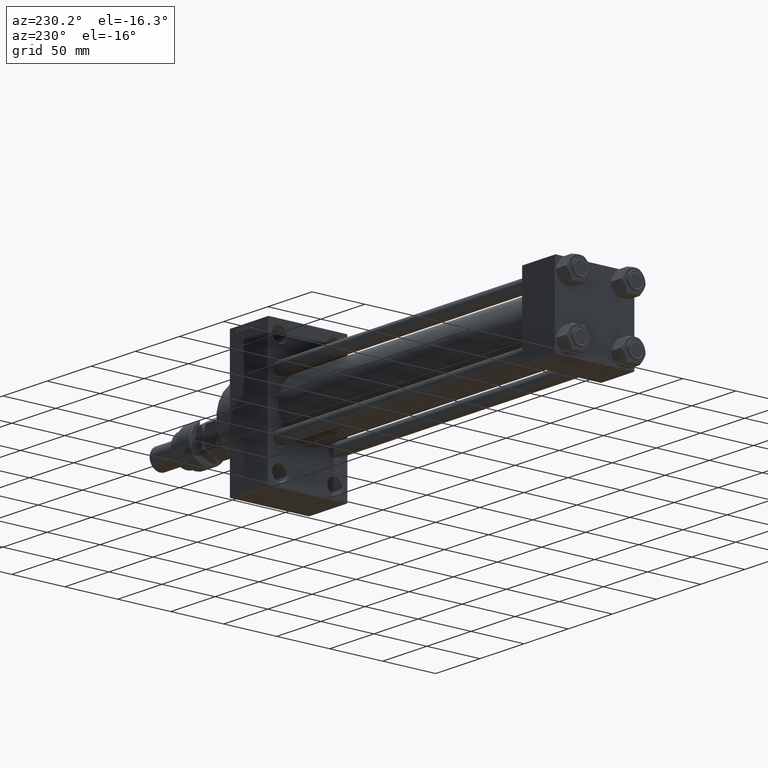
[diagram: clean part render]
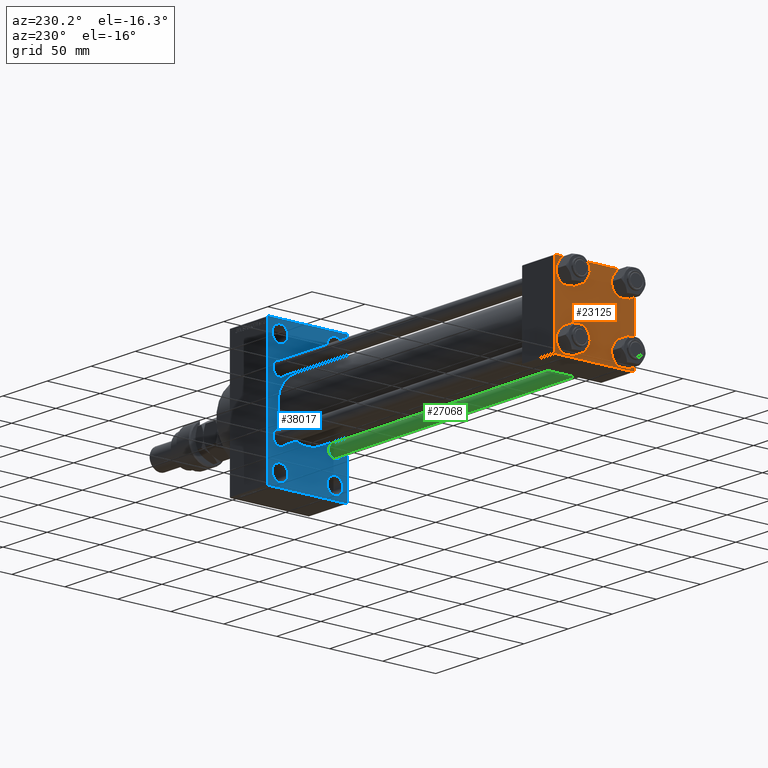
[diagram: same view with three faces highlighted in distinct colors, each labeled with its STEP entity id]
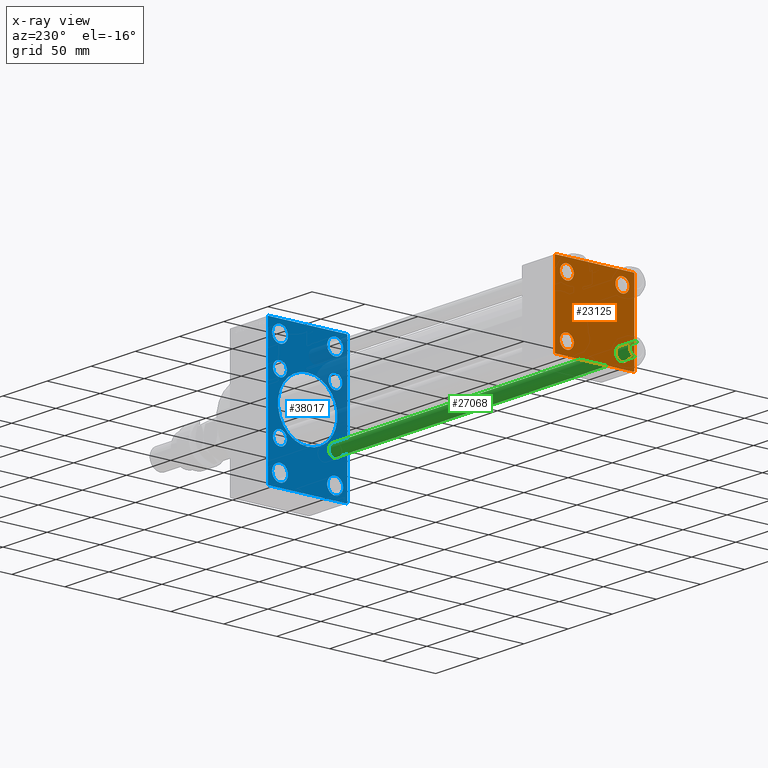
[diagram: x-ray of the same camera — body ghosted, the three highlighted faces saturated]
A machine part, auxiliary view with three faces highlighted in distinct colors.
The next image is the same camera in x-ray (body ghosted, the three faces saturated) — at least one of them is partly hidden behind the body in this view.
Their STEP definitions:

[orange] entity #23125 — the highlighted planar face has unit normal (-1, 0, 0).
#491 = ORIENTED_EDGE ( 'NONE', *, *, #43007, .T. ) ;
#774 = ORIENTED_EDGE ( 'NONE', *, *, #31074, .T. ) ;
#1131 = EDGE_LOOP ( 'NONE', ( #774, #491 ) ) ;
#1439 = CARTESIAN_POINT ( 'NONE',  ( 0.000000000000000000, -37.00000000000002132, -37.50000000000000711 ) ) ;
#1771 = CARTESIAN_POINT ( 'NONE',  ( 0.000000000000000000, 37.49999999999999289, 37.00000000000000000 ) ) ;
#1823 = DIRECTION ( 'NONE',  ( 0.000000000000000000, 0.000000000000000000, 1.000000000000000000 ) ) ;
#2017 = EDGE_CURVE ( 'NONE', #16453, #8182, #15017, .T. ) ;
#2538 = ORIENTED_EDGE ( 'NONE', *, *, #30746, .T. ) ;
#2564 = ORIENTED_EDGE ( 'NONE', *, *, #26328, .F. ) ;
#3113 = VERTEX_POINT ( 'NONE', #45481 ) ;
#3364 = CIRCLE ( 'NONE', #48608, 6.500000000000015987 ) ;
#4168 = VECTOR ( 'NONE', #6081, 1000.000000000000114 ) ;
#4410 = CARTESIAN_POINT ( 'NONE',  ( 0.000000000000000000, -37.24999999999975842, -37.25000000000027001 ) ) ;
#4815 = DIRECTION ( 'NONE',  ( 0.000000000000000000, 0.000000000000000000, 1.000000000000000000 ) ) ;
#4841 = EDGE_LOOP ( 'NONE', ( #31552, #46095, #11657, #36432, #2564, #31416, #23328, #17465 ) ) ;
#5378 = CARTESIAN_POINT ( 'NONE',  ( 0.000000000000000000, -37.00000000000000711, 37.49999999999999289 ) ) ;
#5585 = ORIENTED_EDGE ( 'NONE', *, *, #12288, .T. ) ;
#5615 = CARTESIAN_POINT ( 'NONE',  ( 0.000000000000000000, 36.99999999999999289, 37.50000000000000000 ) ) ;
#5675 = DIRECTION ( 'NONE',  ( -0.000000000000000000, -0.7071067811865474617, -0.7071067811865474617 ) ) ;
#6081 = DIRECTION ( 'NONE',  ( -0.000000000000000000, 0.7071067811865474617, 0.7071067811865474617 ) ) ;
#6692 = LINE ( 'NONE', #37057, #43044 ) ;
#6701 = CARTESIAN_POINT ( 'NONE',  ( 0.000000000000000000, 26.14999999999999858, 26.15000000000000213 ) ) ;
#6837 = LINE ( 'NONE', #41240, #4168 ) ;
#7637 = AXIS2_PLACEMENT_3D ( 'NONE', #23829, #19540, #4815 ) ;
#7995 = FACE_OUTER_BOUND ( 'NONE', #4841, .T. ) ;
#8008 = CARTESIAN_POINT ( 'NONE',  ( 0.000000000000000000, -26.14999999999999147, -32.65000000000002700 ) ) ;
#8182 = VERTEX_POINT ( 'NONE', #19647 ) ;
#8379 = CIRCLE ( 'NONE', #23747, 6.500000000000015987 ) ;
#8413 = DIRECTION ( 'NONE',  ( 1.000000000000000000, -0.000000000000000000, 0.000000000000000000 ) ) ;
#9046 = EDGE_CURVE ( 'NONE', #3113, #12116, #24678, .T. ) ;
#10012 = LINE ( 'NONE', #25458, #27886 ) ;
#10101 = VERTEX_POINT ( 'NONE', #17948 ) ;
#11657 = ORIENTED_EDGE ( 'NONE', *, *, #9046, .T. ) ;
#12116 = VERTEX_POINT ( 'NONE', #1439 ) ;
#12288 = EDGE_CURVE ( 'NONE', #24018, #10101, #8379, .T. ) ;
#12386 = CIRCLE ( 'NONE', #30198, 6.500000000000023093 ) ;
#14422 = EDGE_CURVE ( 'NONE', #8182, #16453, #39139, .T. ) ;
#15017 = CIRCLE ( 'NONE', #45709, 6.500000000000023093 ) ;
#15305 = EDGE_CURVE ( 'NONE', #41282, #27900, #10012, .T. ) ;
#15340 = DIRECTION ( 'NONE',  ( 1.000000000000000000, -0.000000000000000000, 0.000000000000000000 ) ) ;
#15388 = VERTEX_POINT ( 'NONE', #45673 ) ;
#15630 = CARTESIAN_POINT ( 'NONE',  ( 0.000000000000000000, 37.49999999999999289, -36.99999999999998579 ) ) ;
#16223 = DIRECTION ( 'NONE',  ( 1.000000000000000000, -0.000000000000000000, 0.000000000000000000 ) ) ;
#16453 = VERTEX_POINT ( 'NONE', #21236 ) ;
#16851 = ORIENTED_EDGE ( 'NONE', *, *, #2017, .T. ) ;
#17071 = DIRECTION ( 'NONE',  ( 0.000000000000000000, -1.000000000000000000, -9.251858538542972814E-17 ) ) ;
#17465 = ORIENTED_EDGE ( 'NONE', *, *, #15305, .T. ) ;
#17601 = DIRECTION ( 'NONE',  ( 0.000000000000000000, 0.7071067811865474617, -0.7071067811865474617 ) ) ;
#17948 = CARTESIAN_POINT ( 'NONE',  ( 0.000000000000000000, 26.14999999999999858, -19.64999999999998792 ) ) ;
#18627 = CARTESIAN_POINT ( 'NONE',  ( 0.000000000000000000, -26.14999999999999147, -19.64999999999999503 ) ) ;
#18726 = DIRECTION ( 'NONE',  ( 0.000000000000000000, 0.000000000000000000, 1.000000000000000000 ) ) ;
#18994 = VERTEX_POINT ( 'NONE', #31601 ) ;
#19338 = AXIS2_PLACEMENT_3D ( 'NONE', #23672, #15340, #23444 ) ;
#19346 = EDGE_LOOP ( 'NONE', ( #42785, #5585 ) ) ;
#19443 = CIRCLE ( 'NONE', #33146, 6.500000000000015987 ) ;
#19540 = DIRECTION ( 'NONE',  ( 1.000000000000000000, -0.000000000000000000, 0.000000000000000000 ) ) ;
#19625 = DIRECTION ( 'NONE',  ( 0.000000000000000000, -0.7071067811865524577, 0.7071067811865426878 ) ) ;
#19647 = CARTESIAN_POINT ( 'NONE',  ( 0.000000000000000000, -26.14999999999999147, 19.64999999999999147 ) ) ;
#20828 = DIRECTION ( 'NONE',  ( 1.000000000000000000, -0.000000000000000000, 0.000000000000000000 ) ) ;
#21236 = CARTESIAN_POINT ( 'NONE',  ( 0.000000000000000000, -26.14999999999999147, 32.65000000000003411 ) ) ;
#21291 = CARTESIAN_POINT ( 'NONE',  ( 0.000000000000000000, 26.14999999999999858, 32.65000000000002700 ) ) ;
#21870 = AXIS2_PLACEMENT_3D ( 'NONE', #46099, #16223, #31659 ) ;
#22938 = PLANE ( 'NONE',  #42725 ) ;
#23125 = ADVANCED_FACE ( 'NONE', ( #42388, #46437, #49724, #27241, #7995 ), #22938, .T. ) ;
#23328 = ORIENTED_EDGE ( 'NONE', *, *, #37629, .F. ) ;
#23440 = DIRECTION ( 'NONE',  ( -0.000000000000000000, 0.000000000000000000, 1.000000000000000000 ) ) ;
#23444 = DIRECTION ( 'NONE',  ( 0.000000000000000000, 0.000000000000000000, 1.000000000000000000 ) ) ;
#23672 = CARTESIAN_POINT ( 'NONE',  ( 0.000000000000000000, -26.14999999999999147, -26.15000000000000924 ) ) ;
#23747 = AXIS2_PLACEMENT_3D ( 'NONE', #42903, #47183, #43883 ) ;
#23829 = CARTESIAN_POINT ( 'NONE',  ( 0.000000000000000000, -26.14999999999999147, 26.15000000000000924 ) ) ;
#24018 = VERTEX_POINT ( 'NONE', #49992 ) ;
#24678 = LINE ( 'NONE', #44392, #28878 ) ;
#24992 = EDGE_CURVE ( 'NONE', #45800, #38895, #37085, .T. ) ;
#25458 = CARTESIAN_POINT ( 'NONE',  ( 0.000000000000000000, 37.24999999999999289, 37.24999999999999289 ) ) ;
#26328 = EDGE_CURVE ( 'NONE', #44862, #15388, #46390, .T. ) ;
#26697 = CARTESIAN_POINT ( 'NONE',  ( 0.000000000000000000, -37.50000000000000711, 37.49999999999999289 ) ) ;
#27241 = FACE_BOUND ( 'NONE', #1131, .T. ) ;
#27273 = LINE ( 'NONE', #42172, #48615 ) ;
#27886 = VECTOR ( 'NONE', #17601, 1000.000000000000114 ) ;
#27900 = VERTEX_POINT ( 'NONE', #1771 ) ;
#28878 = VECTOR ( 'NONE', #17071, 1000.000000000000000 ) ;
#29160 = ORIENTED_EDGE ( 'NONE', *, *, #24992, .T. ) ;
#29350 = EDGE_CURVE ( 'NONE', #27900, #35406, #37839, .T. ) ;
#30198 = AXIS2_PLACEMENT_3D ( 'NONE', #6701, #48174, #37305 ) ;
#30746 = EDGE_CURVE ( 'NONE', #38895, #45800, #19443, .T. ) ;
#30776 = DIRECTION ( 'NONE',  ( 0.000000000000000000, 0.000000000000000000, -1.000000000000000000 ) ) ;
#30815 = DIRECTION ( 'NONE',  ( 0.000000000000000000, -1.000000000000000000, -9.251858538542971581E-17 ) ) ;
#31074 = EDGE_CURVE ( 'NONE', #32949, #18994, #31528, .T. ) ;
#31416 = ORIENTED_EDGE ( 'NONE', *, *, #34014, .T. ) ;
#31528 = CIRCLE ( 'NONE', #21870, 6.500000000000023093 ) ;
#31552 = ORIENTED_EDGE ( 'NONE', *, *, #29350, .T. ) ;
#31601 = CARTESIAN_POINT ( 'NONE',  ( 0.000000000000000000, 26.14999999999999858, 19.64999999999998437 ) ) ;
#31659 = DIRECTION ( 'NONE',  ( 0.000000000000000000, 0.000000000000000000, 1.000000000000000000 ) ) ;
#32543 = EDGE_LOOP ( 'NONE', ( #2538, #29160 ) ) ;
#32949 = VERTEX_POINT ( 'NONE', #21291 ) ;
#33146 = AXIS2_PLACEMENT_3D ( 'NONE', #46884, #20828, #1823 ) ;
#34014 = EDGE_CURVE ( 'NONE', #44862, #37978, #6837, .T. ) ;
#34565 = CARTESIAN_POINT ( 'NONE',  ( 0.000000000000000000, 37.49999999999999289, 37.50000000000000000 ) ) ;
#35406 = VERTEX_POINT ( 'NONE', #15630 ) ;
#35722 = CARTESIAN_POINT ( 'NONE',  ( 0.000000000000000000, 26.14999999999999858, -26.15000000000000213 ) ) ;
#36432 = ORIENTED_EDGE ( 'NONE', *, *, #47589, .T. ) ;
#37057 = CARTESIAN_POINT ( 'NONE',  ( 0.000000000000000000, 37.24999999999998579, -37.24999999999998579 ) ) ;
#37085 = CIRCLE ( 'NONE', #19338, 6.500000000000015987 ) ;
#37305 = DIRECTION ( 'NONE',  ( 0.000000000000000000, 0.000000000000000000, 1.000000000000000000 ) ) ;
#37629 = EDGE_CURVE ( 'NONE', #41282, #37978, #27273, .T. ) ;
#37839 = LINE ( 'NONE', #34565, #42788 ) ;
#37978 = VERTEX_POINT ( 'NONE', #5378 ) ;
#38093 = CARTESIAN_POINT ( 'NONE',  ( 0.000000000000000000, 0.000000000000000000, 0.000000000000000000 ) ) ;
#38895 = VERTEX_POINT ( 'NONE', #18627 ) ;
#39139 = CIRCLE ( 'NONE', #7637, 6.500000000000023093 ) ;
#40328 = EDGE_CURVE ( 'NONE', #10101, #24018, #3364, .T. ) ;
#40656 = VECTOR ( 'NONE', #19625, 1000.000000000000000 ) ;
#41240 = CARTESIAN_POINT ( 'NONE',  ( -0.000000000000000000, -37.25000000000000000, 37.25000000000000000 ) ) ;
#41282 = VERTEX_POINT ( 'NONE', #5615 ) ;
#41384 = EDGE_LOOP ( 'NONE', ( #16851, #47026 ) ) ;
#41484 = DIRECTION ( 'NONE',  ( 1.000000000000000000, -0.000000000000000000, 0.000000000000000000 ) ) ;
#42138 = LINE ( 'NONE', #4410, #40656 ) ;
#42172 = CARTESIAN_POINT ( 'NONE',  ( 0.000000000000000000, 37.49999999999999289, 37.50000000000000000 ) ) ;
#42345 = DIRECTION ( 'NONE',  ( 0.000000000000000000, 9.251858538542971581E-17, -1.000000000000000000 ) ) ;
#42388 = FACE_BOUND ( 'NONE', #41384, .T. ) ;
#42725 = AXIS2_PLACEMENT_3D ( 'NONE', #38093, #49982, #23440 ) ;
#42785 = ORIENTED_EDGE ( 'NONE', *, *, #40328, .T. ) ;
#42788 = VECTOR ( 'NONE', #30776, 1000.000000000000000 ) ;
#42903 = CARTESIAN_POINT ( 'NONE',  ( 0.000000000000000000, 26.14999999999999858, -26.15000000000000213 ) ) ;
#43007 = EDGE_CURVE ( 'NONE', #18994, #32949, #12386, .T. ) ;
#43044 = VECTOR ( 'NONE', #5675, 1000.000000000000114 ) ;
#43883 = DIRECTION ( 'NONE',  ( 0.000000000000000000, 0.000000000000000000, 1.000000000000000000 ) ) ;
#44392 = CARTESIAN_POINT ( 'NONE',  ( 0.000000000000000000, 37.49999999999999289, -37.50000000000000000 ) ) ;
#44862 = VERTEX_POINT ( 'NONE', #45696 ) ;
#45106 = VECTOR ( 'NONE', #42345, 1000.000000000000000 ) ;
#45481 = CARTESIAN_POINT ( 'NONE',  ( 0.000000000000000000, 36.99999999999997868, -37.50000000000000000 ) ) ;
#45673 = CARTESIAN_POINT ( 'NONE',  ( 0.000000000000000000, -37.50000000000000000, -37.00000000000003553 ) ) ;
#45696 = CARTESIAN_POINT ( 'NONE',  ( 0.000000000000000000, -37.50000000000000711, 36.99999999999999289 ) ) ;
#45709 = AXIS2_PLACEMENT_3D ( 'NONE', #50073, #41484, #18726 ) ;
#45800 = VERTEX_POINT ( 'NONE', #8008 ) ;
#46005 = EDGE_CURVE ( 'NONE', #35406, #3113, #6692, .T. ) ;
#46095 = ORIENTED_EDGE ( 'NONE', *, *, #46005, .T. ) ;
#46099 = CARTESIAN_POINT ( 'NONE',  ( 0.000000000000000000, 26.14999999999999858, 26.15000000000000213 ) ) ;
#46390 = LINE ( 'NONE', #26697, #45106 ) ;
#46437 = FACE_BOUND ( 'NONE', #32543, .T. ) ;
#46884 = CARTESIAN_POINT ( 'NONE',  ( 0.000000000000000000, -26.14999999999999147, -26.15000000000000924 ) ) ;
#47026 = ORIENTED_EDGE ( 'NONE', *, *, #14422, .T. ) ;
#47099 = DIRECTION ( 'NONE',  ( 0.000000000000000000, 0.000000000000000000, 1.000000000000000000 ) ) ;
#47183 = DIRECTION ( 'NONE',  ( 1.000000000000000000, -0.000000000000000000, 0.000000000000000000 ) ) ;
#47589 = EDGE_CURVE ( 'NONE', #12116, #15388, #42138, .T. ) ;
#48174 = DIRECTION ( 'NONE',  ( 1.000000000000000000, -0.000000000000000000, 0.000000000000000000 ) ) ;
#48608 = AXIS2_PLACEMENT_3D ( 'NONE', #35722, #8413, #47099 ) ;
#48615 = VECTOR ( 'NONE', #30815, 1000.000000000000000 ) ;
#49724 = FACE_BOUND ( 'NONE', #19346, .T. ) ;
#49982 = DIRECTION ( 'NONE',  ( -1.000000000000000000, 0.000000000000000000, -0.000000000000000000 ) ) ;
#49992 = CARTESIAN_POINT ( 'NONE',  ( 0.000000000000000000, 26.14999999999999858, -32.65000000000001990 ) ) ;
#50073 = CARTESIAN_POINT ( 'NONE',  ( 0.000000000000000000, -26.14999999999999147, 26.15000000000000924 ) ) ;

[blue] entity #38017 — the highlighted planar face has unit normal (-1, 0, 0).
#178 = VERTEX_POINT ( 'NONE', #41008 ) ;
#255 = AXIS2_PLACEMENT_3D ( 'NONE', #23883, #28175, #4624 ) ;
#422 = EDGE_CURVE ( 'NONE', #38787, #47277, #36744, .T. ) ;
#1002 = DIRECTION ( 'NONE',  ( 0.000000000000000000, -0.7071067811865965336, 0.7071067811864985009 ) ) ;
#1061 = FACE_BOUND ( 'NONE', #3178, .T. ) ;
#1338 = EDGE_LOOP ( 'NONE', ( #14252, #7712 ) ) ;
#1345 = DIRECTION ( 'NONE',  ( 1.000000000000000000, -0.000000000000000000, 0.000000000000000000 ) ) ;
#1399 = CARTESIAN_POINT ( 'NONE',  ( 324.9999999999999432, -2.602085213965210642E-15, 0.000000000000000000 ) ) ;
#1573 = PLANE ( 'NONE',  #255 ) ;
#1847 = CARTESIAN_POINT ( 'NONE',  ( 324.9999999999999432, 26.14999999999999858, 26.15000000000000213 ) ) ;
#2112 = AXIS2_PLACEMENT_3D ( 'NONE', #9128, #20269, #35693 ) ;
#2136 = CARTESIAN_POINT ( 'NONE',  ( 324.9999999999999432, -26.14999999999999147, 19.65000000000000213 ) ) ;
#2381 = EDGE_CURVE ( 'NONE', #4992, #9051, #13363, .T. ) ;
#2704 = DIRECTION ( 'NONE',  ( 0.000000000000000000, 0.000000000000000000, 1.000000000000000000 ) ) ;
#3114 = LINE ( 'NONE', #7179, #13010 ) ;
#3143 = CARTESIAN_POINT ( 'NONE',  ( 324.9999999999999432, -26.14999999999999147, -26.15000000000000924 ) ) ;
#3178 = EDGE_LOOP ( 'NONE', ( #7174, #4167 ) ) ;
#3280 = VERTEX_POINT ( 'NONE', #9521 ) ;
#3330 = VECTOR ( 'NONE', #36031, 1000.000000000000000 ) ;
#3481 = ORIENTED_EDGE ( 'NONE', *, *, #43152, .T. ) ;
#3499 = CARTESIAN_POINT ( 'NONE',  ( 324.9999999999999432, 26.00000000000000000, 60.00000000000010658 ) ) ;
#3887 = DIRECTION ( 'NONE',  ( 1.000000000000000000, -0.000000000000000000, 0.000000000000000000 ) ) ;
#4167 = ORIENTED_EDGE ( 'NONE', *, *, #11757, .T. ) ;
#4382 = EDGE_LOOP ( 'NONE', ( #9327, #40598 ) ) ;
#4422 = EDGE_LOOP ( 'NONE', ( #28946, #23139 ) ) ;
#4451 = EDGE_CURVE ( 'NONE', #17009, #6601, #20595, .T. ) ;
#4562 = CARTESIAN_POINT ( 'NONE',  ( 324.9999999999999432, -2.602085213965210642E-15, 0.000000000000000000 ) ) ;
#4624 = DIRECTION ( 'NONE',  ( -0.000000000000000000, 0.000000000000000000, 1.000000000000000000 ) ) ;
#4717 = VERTEX_POINT ( 'NONE', #14639 ) ;
#4992 = VERTEX_POINT ( 'NONE', #48461 ) ;
#5002 = ORIENTED_EDGE ( 'NONE', *, *, #18771, .T. ) ;
#5123 = DIRECTION ( 'NONE',  ( 1.000000000000000000, -0.000000000000000000, 0.000000000000000000 ) ) ;
#5178 = DIRECTION ( 'NONE',  ( 0.000000000000000000, 0.000000000000000000, 1.000000000000000000 ) ) ;
#5454 = CARTESIAN_POINT ( 'NONE',  ( 324.9999999999999432, -2.602085213965210642E-15, 28.00000000000000000 ) ) ;
#5513 = AXIS2_PLACEMENT_3D ( 'NONE', #15971, #31413, #26640 ) ;
#5707 = DIRECTION ( 'NONE',  ( 1.000000000000000000, 0.000000000000000000, 0.000000000000000000 ) ) ;
#5984 = DIRECTION ( 'NONE',  ( 1.000000000000000000, -0.000000000000000000, 0.000000000000000000 ) ) ;
#6425 = EDGE_CURVE ( 'NONE', #30758, #3280, #7010, .T. ) ;
#6449 = CARTESIAN_POINT ( 'NONE',  ( 324.9999999999999432, -36.99999999999992895, 63.99999999999997158 ) ) ;
#6516 = DIRECTION ( 'NONE',  ( 1.000000000000000000, -0.000000000000000000, 0.000000000000000000 ) ) ;
#6546 = ORIENTED_EDGE ( 'NONE', *, *, #20259, .T. ) ;
#6601 = VERTEX_POINT ( 'NONE', #17315 ) ;
#7010 = LINE ( 'NONE', #41152, #23152 ) ;
#7055 = VERTEX_POINT ( 'NONE', #19150 ) ;
#7058 = CIRCLE ( 'NONE', #47431, 6.500000000000008882 ) ;
#7174 = ORIENTED_EDGE ( 'NONE', *, *, #38416, .T. ) ;
#7179 = CARTESIAN_POINT ( 'NONE',  ( 324.9999999999999432, 50.49999999999739941, -50.50000000000441247 ) ) ;
#7311 = CARTESIAN_POINT ( 'NONE',  ( 324.9999999999999432, 26.14999999999999858, -26.15000000000000213 ) ) ;
#7483 = DIRECTION ( 'NONE',  ( 0.000000000000000000, -5.421010862427522170E-17, -1.000000000000000000 ) ) ;
#7712 = ORIENTED_EDGE ( 'NONE', *, *, #26455, .T. ) ;
#8143 = CARTESIAN_POINT ( 'NONE',  ( 324.9999999999999432, -50.49999999999740652, -50.50000000000441958 ) ) ;
#8189 = ORIENTED_EDGE ( 'NONE', *, *, #422, .T. ) ;
#8298 = CARTESIAN_POINT ( 'NONE',  ( 324.9999999999999432, 8.269258236473784371E-16, -28.00000000000000000 ) ) ;
#8435 = FACE_BOUND ( 'NONE', #26160, .T. ) ;
#8641 = EDGE_CURVE ( 'NONE', #4717, #178, #19345, .T. ) ;
#8969 = EDGE_CURVE ( 'NONE', #7055, #40799, #14356, .T. ) ;
#9051 = VERTEX_POINT ( 'NONE', #2136 ) ;
#9128 = CARTESIAN_POINT ( 'NONE',  ( 324.9999999999999432, -26.14999999999999147, -26.15000000000000924 ) ) ;
#9172 = DIRECTION ( 'NONE',  ( 1.000000000000000000, -0.000000000000000000, 0.000000000000000000 ) ) ;
#9219 = EDGE_CURVE ( 'NONE', #40799, #7055, #15156, .T. ) ;
#9327 = ORIENTED_EDGE ( 'NONE', *, *, #27680, .T. ) ;
#9521 = CARTESIAN_POINT ( 'NONE',  ( 324.9999999999999432, 37.50000000000000000, 63.49999999999998579 ) ) ;
#9846 = VERTEX_POINT ( 'NONE', #26624 ) ;
#10283 = LINE ( 'NONE', #22685, #36349 ) ;
#11252 = CIRCLE ( 'NONE', #36242, 6.500000000000008882 ) ;
#11338 = CARTESIAN_POINT ( 'NONE',  ( 324.9999999999999432, -37.49999999999999289, 63.49999999999991473 ) ) ;
#11757 = EDGE_CURVE ( 'NONE', #15295, #46197, #27375, .T. ) ;
#12096 = DIRECTION ( 'NONE',  ( 0.000000000000000000, 0.000000000000000000, 1.000000000000000000 ) ) ;
#12168 = DIRECTION ( 'NONE',  ( 0.000000000000000000, 0.000000000000000000, -1.000000000000000000 ) ) ;
#12172 = EDGE_CURVE ( 'NONE', #40950, #42176, #31125, .T. ) ;
#12183 = AXIS2_PLACEMENT_3D ( 'NONE', #16464, #47317, #12671 ) ;
#12224 = DIRECTION ( 'NONE',  ( 0.000000000000000000, 0.000000000000000000, 1.000000000000000000 ) ) ;
#12477 = CARTESIAN_POINT ( 'NONE',  ( 324.9999999999999432, -26.14999999999999147, 26.15000000000000924 ) ) ;
#12486 = VERTEX_POINT ( 'NONE', #48177 ) ;
#12613 = CARTESIAN_POINT ( 'NONE',  ( 324.9999999999999432, -50.49999999999969447, 50.50000000000039080 ) ) ;
#12671 = DIRECTION ( 'NONE',  ( 0.000000000000000000, 0.000000000000000000, 1.000000000000000000 ) ) ;
#12815 = EDGE_LOOP ( 'NONE', ( #35242, #20408 ) ) ;
#13010 = VECTOR ( 'NONE', #22627, 1000.000000000000114 ) ;
#13363 = CIRCLE ( 'NONE', #41658, 6.500000000000008882 ) ;
#13468 = VECTOR ( 'NONE', #15532, 1000.000000000000000 ) ;
#13595 = DIRECTION ( 'NONE',  ( 0.000000000000000000, -1.000000000000000000, -1.850371707708594563E-16 ) ) ;
#13813 = ORIENTED_EDGE ( 'NONE', *, *, #43581, .F. ) ;
#13851 = VERTEX_POINT ( 'NONE', #31121 ) ;
#14101 = LINE ( 'NONE', #33594, #32587 ) ;
#14252 = ORIENTED_EDGE ( 'NONE', *, *, #12172, .T. ) ;
#14356 = CIRCLE ( 'NONE', #24824, 7.500000000000117240 ) ;
#14574 = CARTESIAN_POINT ( 'NONE',  ( 324.9999999999999432, -25.99999999999999645, 44.99999999999987921 ) ) ;
#14639 = CARTESIAN_POINT ( 'NONE',  ( 324.9999999999999432, 36.99999999999993605, -64.00000000000000000 ) ) ;
#14805 = ORIENTED_EDGE ( 'NONE', *, *, #45733, .T. ) ;
#14896 = VERTEX_POINT ( 'NONE', #17921 ) ;
#15156 = CIRCLE ( 'NONE', #45844, 7.500000000000117240 ) ;
#15295 = VERTEX_POINT ( 'NONE', #29767 ) ;
#15532 = DIRECTION ( 'NONE',  ( 0.000000000000000000, -1.000000000000000000, -1.850371707708594563E-16 ) ) ;
#15971 = CARTESIAN_POINT ( 'NONE',  ( 324.9999999999999432, -25.99999999999999645, -52.49999999999999289 ) ) ;
#16464 = CARTESIAN_POINT ( 'NONE',  ( 324.9999999999999432, -25.99999999999999645, -52.49999999999999289 ) ) ;
#16515 = DIRECTION ( 'NONE',  ( 1.000000000000000000, -0.000000000000000000, 0.000000000000000000 ) ) ;
#16605 = ORIENTED_EDGE ( 'NONE', *, *, #29405, .T. ) ;
#16754 = EDGE_CURVE ( 'NONE', #31614, #22548, #38432, .T. ) ;
#16807 = LINE ( 'NONE', #39327, #3330 ) ;
#17009 = VERTEX_POINT ( 'NONE', #47658 ) ;
#17259 = AXIS2_PLACEMENT_3D ( 'NONE', #40652, #6516, #2704 ) ;
#17284 = CARTESIAN_POINT ( 'NONE',  ( 324.9999999999999432, 26.14999999999999858, 26.15000000000000213 ) ) ;
#17315 = CARTESIAN_POINT ( 'NONE',  ( 324.9999999999999432, 26.14999999999999858, 19.64999999999999147 ) ) ;
#17554 = CIRCLE ( 'NONE', #49037, 28.00000000000000000 ) ;
#17876 = ORIENTED_EDGE ( 'NONE', *, *, #47306, .T. ) ;
#17921 = CARTESIAN_POINT ( 'NONE',  ( 324.9999999999999432, -37.49999999999999289, -63.50000000000002842 ) ) ;
#17999 = VERTEX_POINT ( 'NONE', #6449 ) ;
#18771 = EDGE_CURVE ( 'NONE', #12486, #9846, #32834, .T. ) ;
#19150 = CARTESIAN_POINT ( 'NONE',  ( 324.9999999999999432, 26.00000000000000000, -60.00000000000010658 ) ) ;
#19336 = EDGE_LOOP ( 'NONE', ( #28448, #45152, #24961, #36623, #13813, #22959, #16605, #20410 ) ) ;
#19345 = LINE ( 'NONE', #34767, #13468 ) ;
#19837 = AXIS2_PLACEMENT_3D ( 'NONE', #7311, #30851, #12096 ) ;
#20139 = CARTESIAN_POINT ( 'NONE',  ( 324.9999999999999432, 26.00000000000000000, -52.49999999999999289 ) ) ;
#20230 = CARTESIAN_POINT ( 'NONE',  ( 324.9999999999999432, 26.14999999999999858, -19.64999999999999503 ) ) ;
#20259 = EDGE_CURVE ( 'NONE', #35518, #23653, #17554, .T. ) ;
#20269 = DIRECTION ( 'NONE',  ( 1.000000000000000000, -0.000000000000000000, 0.000000000000000000 ) ) ;
#20272 = DIRECTION ( 'NONE',  ( 0.000000000000000000, 0.000000000000000000, 1.000000000000000000 ) ) ;
#20408 = ORIENTED_EDGE ( 'NONE', *, *, #21102, .T. ) ;
#20410 = ORIENTED_EDGE ( 'NONE', *, *, #32694, .T. ) ;
#20579 = DIRECTION ( 'NONE',  ( 0.000000000000000000, 0.000000000000000000, 1.000000000000000000 ) ) ;
#20595 = CIRCLE ( 'NONE', #40815, 6.500000000000008882 ) ;
#21102 = EDGE_CURVE ( 'NONE', #9051, #4992, #7058, .T. ) ;
#22548 = VERTEX_POINT ( 'NONE', #20230 ) ;
#22627 = DIRECTION ( 'NONE',  ( -0.000000000000000000, -0.7071067811865965336, -0.7071067811864985009 ) ) ;
#22648 = EDGE_LOOP ( 'NONE', ( #14805, #8189 ) ) ;
#22685 = CARTESIAN_POINT ( 'NONE',  ( 324.9999999999999432, 37.50000000000000000, 63.99999999999998579 ) ) ;
#22900 = DIRECTION ( 'NONE',  ( 0.000000000000000000, 0.000000000000000000, 1.000000000000000000 ) ) ;
#22959 = ORIENTED_EDGE ( 'NONE', *, *, #6425, .T. ) ;
#23139 = ORIENTED_EDGE ( 'NONE', *, *, #8969, .T. ) ;
#23152 = VECTOR ( 'NONE', #49235, 1000.000000000000000 ) ;
#23319 = CIRCLE ( 'NONE', #41892, 7.500000000000117240 ) ;
#23524 = AXIS2_PLACEMENT_3D ( 'NONE', #17284, #36510, #40048 ) ;
#23653 = VERTEX_POINT ( 'NONE', #8298 ) ;
#23883 = CARTESIAN_POINT ( 'NONE',  ( 324.9999999999999432, 0.000000000000000000, 0.000000000000000000 ) ) ;
#24355 = DIRECTION ( 'NONE',  ( 0.000000000000000000, 0.000000000000000000, 1.000000000000000000 ) ) ;
#24495 = AXIS2_PLACEMENT_3D ( 'NONE', #3143, #3887, #22900 ) ;
#24824 = AXIS2_PLACEMENT_3D ( 'NONE', #20139, #27737, #5178 ) ;
#24961 = ORIENTED_EDGE ( 'NONE', *, *, #39882, .F. ) ;
#25106 = CIRCLE ( 'NONE', #23524, 6.500000000000008882 ) ;
#26160 = EDGE_LOOP ( 'NONE', ( #6546, #17876 ) ) ;
#26193 = CIRCLE ( 'NONE', #36661, 28.00000000000000000 ) ;
#26455 = EDGE_CURVE ( 'NONE', #42176, #40950, #23319, .T. ) ;
#26624 = CARTESIAN_POINT ( 'NONE',  ( 324.9999999999999432, -26.14999999999999147, -19.65000000000000213 ) ) ;
#26640 = DIRECTION ( 'NONE',  ( 0.000000000000000000, 0.000000000000000000, 1.000000000000000000 ) ) ;
#27375 = CIRCLE ( 'NONE', #5513, 7.500000000000117240 ) ;
#27634 = CARTESIAN_POINT ( 'NONE',  ( 324.9999999999999432, 26.14999999999999858, -26.15000000000000213 ) ) ;
#27677 = FACE_BOUND ( 'NONE', #40303, .T. ) ;
#27680 = EDGE_CURVE ( 'NONE', #22548, #31614, #11252, .T. ) ;
#27737 = DIRECTION ( 'NONE',  ( 1.000000000000000000, -0.000000000000000000, 0.000000000000000000 ) ) ;
#28008 = DIRECTION ( 'NONE',  ( 0.000000000000000000, 0.000000000000000000, -1.000000000000000000 ) ) ;
#28053 = CARTESIAN_POINT ( 'NONE',  ( 324.9999999999999432, -26.14999999999999147, 26.15000000000000924 ) ) ;
#28079 = EDGE_CURVE ( 'NONE', #34442, #17999, #47508, .T. ) ;
#28175 = DIRECTION ( 'NONE',  ( -1.000000000000000000, 0.000000000000000000, -0.000000000000000000 ) ) ;
#28448 = ORIENTED_EDGE ( 'NONE', *, *, #8641, .T. ) ;
#28946 = ORIENTED_EDGE ( 'NONE', *, *, #9219, .T. ) ;
#29012 = DIRECTION ( 'NONE',  ( 1.000000000000000000, -0.000000000000000000, 0.000000000000000000 ) ) ;
#29405 = EDGE_CURVE ( 'NONE', #3280, #13851, #10283, .T. ) ;
#29767 = CARTESIAN_POINT ( 'NONE',  ( 324.9999999999999432, -25.99999999999999645, -60.00000000000010658 ) ) ;
#30758 = VERTEX_POINT ( 'NONE', #35509 ) ;
#30851 = DIRECTION ( 'NONE',  ( 1.000000000000000000, -0.000000000000000000, 0.000000000000000000 ) ) ;
#31121 = CARTESIAN_POINT ( 'NONE',  ( 324.9999999999999432, 37.49999999999999289, -63.50000000000001421 ) ) ;
#31125 = CIRCLE ( 'NONE', #17259, 7.500000000000117240 ) ;
#31413 = DIRECTION ( 'NONE',  ( 1.000000000000000000, -0.000000000000000000, 0.000000000000000000 ) ) ;
#31419 = DIRECTION ( 'NONE',  ( 1.000000000000000000, 0.000000000000000000, 0.000000000000000000 ) ) ;
#31614 = VERTEX_POINT ( 'NONE', #37078 ) ;
#31843 = EDGE_CURVE ( 'NONE', #6601, #17009, #25106, .T. ) ;
#31966 = FACE_OUTER_BOUND ( 'NONE', #19336, .T. ) ;
#32202 = CARTESIAN_POINT ( 'NONE',  ( 324.9999999999999432, 26.00000000000000000, 52.49999999999999289 ) ) ;
#32544 = AXIS2_PLACEMENT_3D ( 'NONE', #40638, #5984, #32818 ) ;
#32587 = VECTOR ( 'NONE', #13595, 1000.000000000000000 ) ;
#32694 = EDGE_CURVE ( 'NONE', #13851, #4717, #3114, .T. ) ;
#32795 = EDGE_LOOP ( 'NONE', ( #40577, #48491 ) ) ;
#32818 = DIRECTION ( 'NONE',  ( 0.000000000000000000, 0.000000000000000000, 1.000000000000000000 ) ) ;
#32834 = CIRCLE ( 'NONE', #2112, 6.500000000000008882 ) ;
#33594 = CARTESIAN_POINT ( 'NONE',  ( 324.9999999999999432, 37.50000000000000000, 63.99999999999998579 ) ) ;
#34017 = CIRCLE ( 'NONE', #12183, 7.500000000000117240 ) ;
#34442 = VERTEX_POINT ( 'NONE', #11338 ) ;
#34767 = CARTESIAN_POINT ( 'NONE',  ( 324.9999999999999432, 37.49999999999999289, -64.00000000000000000 ) ) ;
#35206 = CARTESIAN_POINT ( 'NONE',  ( 324.9999999999999432, -25.99999999999999645, 60.00000000000011369 ) ) ;
#35242 = ORIENTED_EDGE ( 'NONE', *, *, #2381, .T. ) ;
#35391 = DIRECTION ( 'NONE',  ( 1.000000000000000000, -0.000000000000000000, 0.000000000000000000 ) ) ;
#35509 = CARTESIAN_POINT ( 'NONE',  ( 324.9999999999999432, 36.99999999999994316, 63.99999999999998579 ) ) ;
#35518 = VERTEX_POINT ( 'NONE', #5454 ) ;
#35687 = LINE ( 'NONE', #8143, #38299 ) ;
#35693 = DIRECTION ( 'NONE',  ( 0.000000000000000000, 0.000000000000000000, 1.000000000000000000 ) ) ;
#36031 = DIRECTION ( 'NONE',  ( 0.000000000000000000, 0.000000000000000000, -1.000000000000000000 ) ) ;
#36242 = AXIS2_PLACEMENT_3D ( 'NONE', #27634, #46605, #20272 ) ;
#36349 = VECTOR ( 'NONE', #7483, 1000.000000000000000 ) ;
#36510 = DIRECTION ( 'NONE',  ( 1.000000000000000000, -0.000000000000000000, 0.000000000000000000 ) ) ;
#36623 = ORIENTED_EDGE ( 'NONE', *, *, #28079, .T. ) ;
#36661 = AXIS2_PLACEMENT_3D ( 'NONE', #4562, #31419, #12168 ) ;
#36744 = CIRCLE ( 'NONE', #43196, 7.500000000000117240 ) ;
#37078 = CARTESIAN_POINT ( 'NONE',  ( 324.9999999999999432, 26.14999999999999858, -32.65000000000001279 ) ) ;
#37431 = CIRCLE ( 'NONE', #24495, 6.500000000000008882 ) ;
#38017 = ADVANCED_FACE ( 'NONE', ( #39782, #1061, #39295, #43087, #46650, #46883, #42849, #27677, #8435, #31966 ), #1573, .T. ) ;
#38299 = VECTOR ( 'NONE', #1002, 1000.000000000000114 ) ;
#38416 = EDGE_CURVE ( 'NONE', #46197, #15295, #34017, .T. ) ;
#38432 = CIRCLE ( 'NONE', #19837, 6.500000000000008882 ) ;
#38787 = VERTEX_POINT ( 'NONE', #14574 ) ;
#38796 = CARTESIAN_POINT ( 'NONE',  ( 324.9999999999999432, -25.99999999999999645, -44.99999999999987210 ) ) ;
#38970 = CARTESIAN_POINT ( 'NONE',  ( 324.9999999999999432, 26.00000000000000000, 44.99999999999987210 ) ) ;
#39295 = FACE_BOUND ( 'NONE', #4422, .T. ) ;
#39327 = CARTESIAN_POINT ( 'NONE',  ( 324.9999999999999432, -37.49999999999999289, 63.99999999999997158 ) ) ;
#39428 = DIRECTION ( 'NONE',  ( -0.000000000000000000, 0.7071067811865524577, 0.7071067811865426878 ) ) ;
#39782 = FACE_BOUND ( 'NONE', #22648, .T. ) ;
#39882 = EDGE_CURVE ( 'NONE', #34442, #14896, #16807, .T. ) ;
#40048 = DIRECTION ( 'NONE',  ( 0.000000000000000000, 0.000000000000000000, 1.000000000000000000 ) ) ;
#40303 = EDGE_LOOP ( 'NONE', ( #3481, #5002 ) ) ;
#40561 = DIRECTION ( 'NONE',  ( 0.000000000000000000, 0.000000000000000000, 1.000000000000000000 ) ) ;
#40577 = ORIENTED_EDGE ( 'NONE', *, *, #4451, .T. ) ;
#40598 = ORIENTED_EDGE ( 'NONE', *, *, #16754, .T. ) ;
#40638 = CARTESIAN_POINT ( 'NONE',  ( 324.9999999999999432, -25.99999999999999645, 52.50000000000000000 ) ) ;
#40652 = CARTESIAN_POINT ( 'NONE',  ( 324.9999999999999432, 26.00000000000000000, 52.49999999999999289 ) ) ;
#40799 = VERTEX_POINT ( 'NONE', #48538 ) ;
#40815 = AXIS2_PLACEMENT_3D ( 'NONE', #1847, #1345, #40561 ) ;
#40950 = VERTEX_POINT ( 'NONE', #3499 ) ;
#41008 = CARTESIAN_POINT ( 'NONE',  ( 324.9999999999999432, -36.99999999999993605, -64.00000000000001421 ) ) ;
#41152 = CARTESIAN_POINT ( 'NONE',  ( 324.9999999999999432, 50.49999999999791100, 50.50000000000351719 ) ) ;
#41658 = AXIS2_PLACEMENT_3D ( 'NONE', #12477, #5123, #20579 ) ;
#41892 = AXIS2_PLACEMENT_3D ( 'NONE', #32202, #9172, #24355 ) ;
#41931 = VECTOR ( 'NONE', #39428, 1000.000000000000000 ) ;
#42176 = VERTEX_POINT ( 'NONE', #38970 ) ;
#42849 = FACE_BOUND ( 'NONE', #4382, .T. ) ;
#43080 = CARTESIAN_POINT ( 'NONE',  ( 324.9999999999999432, 26.00000000000000000, -52.49999999999999289 ) ) ;
#43087 = FACE_BOUND ( 'NONE', #1338, .T. ) ;
#43152 = EDGE_CURVE ( 'NONE', #9846, #12486, #37431, .T. ) ;
#43196 = AXIS2_PLACEMENT_3D ( 'NONE', #48202, #29012, #44416 ) ;
#43461 = DIRECTION ( 'NONE',  ( 0.000000000000000000, 0.000000000000000000, 1.000000000000000000 ) ) ;
#43581 = EDGE_CURVE ( 'NONE', #30758, #17999, #14101, .T. ) ;
#44278 = EDGE_CURVE ( 'NONE', #178, #14896, #35687, .T. ) ;
#44416 = DIRECTION ( 'NONE',  ( 0.000000000000000000, 0.000000000000000000, 1.000000000000000000 ) ) ;
#45152 = ORIENTED_EDGE ( 'NONE', *, *, #44278, .T. ) ;
#45733 = EDGE_CURVE ( 'NONE', #47277, #38787, #47868, .T. ) ;
#45844 = AXIS2_PLACEMENT_3D ( 'NONE', #43080, #16515, #12224 ) ;
#46197 = VERTEX_POINT ( 'NONE', #38796 ) ;
#46605 = DIRECTION ( 'NONE',  ( 1.000000000000000000, -0.000000000000000000, 0.000000000000000000 ) ) ;
#46650 = FACE_BOUND ( 'NONE', #12815, .T. ) ;
#46883 = FACE_BOUND ( 'NONE', #32795, .T. ) ;
#47277 = VERTEX_POINT ( 'NONE', #35206 ) ;
#47306 = EDGE_CURVE ( 'NONE', #23653, #35518, #26193, .T. ) ;
#47317 = DIRECTION ( 'NONE',  ( 1.000000000000000000, -0.000000000000000000, 0.000000000000000000 ) ) ;
#47431 = AXIS2_PLACEMENT_3D ( 'NONE', #28053, #35391, #43461 ) ;
#47508 = LINE ( 'NONE', #12613, #41931 ) ;
#47658 = CARTESIAN_POINT ( 'NONE',  ( 324.9999999999999432, 26.14999999999999858, 32.65000000000001990 ) ) ;
#47868 = CIRCLE ( 'NONE', #32544, 7.500000000000117240 ) ;
#48177 = CARTESIAN_POINT ( 'NONE',  ( 324.9999999999999432, -26.14999999999999147, -32.65000000000001990 ) ) ;
#48202 = CARTESIAN_POINT ( 'NONE',  ( 324.9999999999999432, -25.99999999999999645, 52.50000000000000000 ) ) ;
#48461 = CARTESIAN_POINT ( 'NONE',  ( 324.9999999999999432, -26.14999999999999147, 32.65000000000001990 ) ) ;
#48491 = ORIENTED_EDGE ( 'NONE', *, *, #31843, .T. ) ;
#48538 = CARTESIAN_POINT ( 'NONE',  ( 324.9999999999999432, 26.00000000000000000, -44.99999999999987210 ) ) ;
#49037 = AXIS2_PLACEMENT_3D ( 'NONE', #1399, #5707, #28008 ) ;
#49235 = DIRECTION ( 'NONE',  ( 0.000000000000000000, 0.7071067811865867636, -0.7071067811865081598 ) ) ;

[green] entity #27068 — the highlighted cylindrical surface (edge-blend (fillet) strip) has radius 6 mm, axis along (-1, 0, 0).
#582 = CARTESIAN_POINT ( 'NONE',  ( 6.000000000000000888, 7.347880794884120722E-16, 0.5000000000000559552 ) ) ;
#826 = VERTEX_POINT ( 'NONE', #44608 ) ;
#1873 = DIRECTION ( 'NONE',  ( -0.000000000000000000, -0.000000000000000000, -1.000000000000000000 ) ) ;
#5500 = AXIS2_PLACEMENT_3D ( 'NONE', #47670, #1873, #39013 ) ;
#5778 = ORIENTED_EDGE ( 'NONE', *, *, #18262, .F. ) ;
#5960 = CARTESIAN_POINT ( 'NONE',  ( 0.000000000000000000, 0.000000000000000000, 0.5000000000000559552 ) ) ;
#6234 = EDGE_LOOP ( 'NONE', ( #5778, #26582, #15491, #27467 ) ) ;
#6503 = LINE ( 'NONE', #21699, #35745 ) ;
#6879 = CIRCLE ( 'NONE', #26290, 6.000000000000000888 ) ;
#12118 = EDGE_CURVE ( 'NONE', #826, #45831, #6879, .T. ) ;
#14621 = LINE ( 'NONE', #21728, #27996 ) ;
#15491 = ORIENTED_EDGE ( 'NONE', *, *, #45723, .T. ) ;
#16329 = FACE_OUTER_BOUND ( 'NONE', #6234, .T. ) ;
#16892 = DIRECTION ( 'NONE',  ( 0.000000000000000000, 0.000000000000000000, -1.000000000000000000 ) ) ;
#17863 = DIRECTION ( 'NONE',  ( -0.000000000000000000, -0.000000000000000000, 1.000000000000000000 ) ) ;
#18262 = EDGE_CURVE ( 'NONE', #826, #30646, #14621, .T. ) ;
#20406 = EDGE_CURVE ( 'NONE', #32602, #30646, #23249, .T. ) ;
#21094 = CARTESIAN_POINT ( 'NONE',  ( -6.000000000000000888, 0.000000000000000000, 0.5000000000000559552 ) ) ;
#21699 = CARTESIAN_POINT ( 'NONE',  ( -6.000000000000000888, 0.000000000000000000, 354.0000000000000000 ) ) ;
#21728 = CARTESIAN_POINT ( 'NONE',  ( 6.000000000000000888, 7.347880794884120722E-16, 354.0000000000000000 ) ) ;
#21948 = DIRECTION ( 'NONE',  ( -0.000000000000000000, -0.000000000000000000, -1.000000000000000000 ) ) ;
#23249 = CIRCLE ( 'NONE', #26469, 6.000000000000000888 ) ;
#26290 = AXIS2_PLACEMENT_3D ( 'NONE', #36366, #16892, #27797 ) ;
#26469 = AXIS2_PLACEMENT_3D ( 'NONE', #5960, #17863, #40869 ) ;
#26582 = ORIENTED_EDGE ( 'NONE', *, *, #12118, .T. ) ;
#27068 = ADVANCED_FACE ( 'NONE', ( #16329 ), #32267, .T. ) ;
#27467 = ORIENTED_EDGE ( 'NONE', *, *, #20406, .T. ) ;
#27797 = DIRECTION ( 'NONE',  ( 1.000000000000000000, 0.000000000000000000, 0.000000000000000000 ) ) ;
#27996 = VECTOR ( 'NONE', #37137, 1000.000000000000000 ) ;
#30646 = VERTEX_POINT ( 'NONE', #582 ) ;
#32267 = CYLINDRICAL_SURFACE ( 'NONE', #5500, 6.000000000000000888 ) ;
#32602 = VERTEX_POINT ( 'NONE', #21094 ) ;
#35745 = VECTOR ( 'NONE', #21948, 1000.000000000000000 ) ;
#36366 = CARTESIAN_POINT ( 'NONE',  ( 0.000000000000000000, 0.000000000000000000, 353.5000000000000000 ) ) ;
#37137 = DIRECTION ( 'NONE',  ( -0.000000000000000000, -0.000000000000000000, -1.000000000000000000 ) ) ;
#39013 = DIRECTION ( 'NONE',  ( -1.000000000000000000, 0.000000000000000000, 0.000000000000000000 ) ) ;
#40869 = DIRECTION ( 'NONE',  ( 1.000000000000000000, 0.000000000000000000, 0.000000000000000000 ) ) ;
#44608 = CARTESIAN_POINT ( 'NONE',  ( 6.000000000000000888, 7.347880794884120722E-16, 353.5000000000000000 ) ) ;
#45723 = EDGE_CURVE ( 'NONE', #45831, #32602, #6503, .T. ) ;
#45831 = VERTEX_POINT ( 'NONE', #49994 ) ;
#47670 = CARTESIAN_POINT ( 'NONE',  ( 0.000000000000000000, 0.000000000000000000, 354.0000000000000000 ) ) ;
#49994 = CARTESIAN_POINT ( 'NONE',  ( -6.000000000000000888, 0.000000000000000000, 353.5000000000000000 ) ) ;